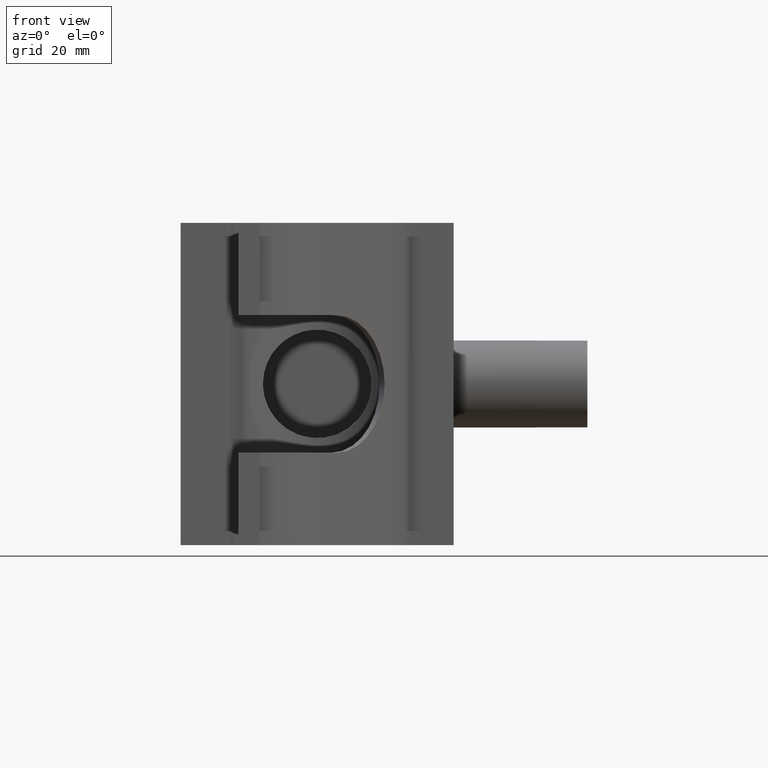
[diagram: clean part render]
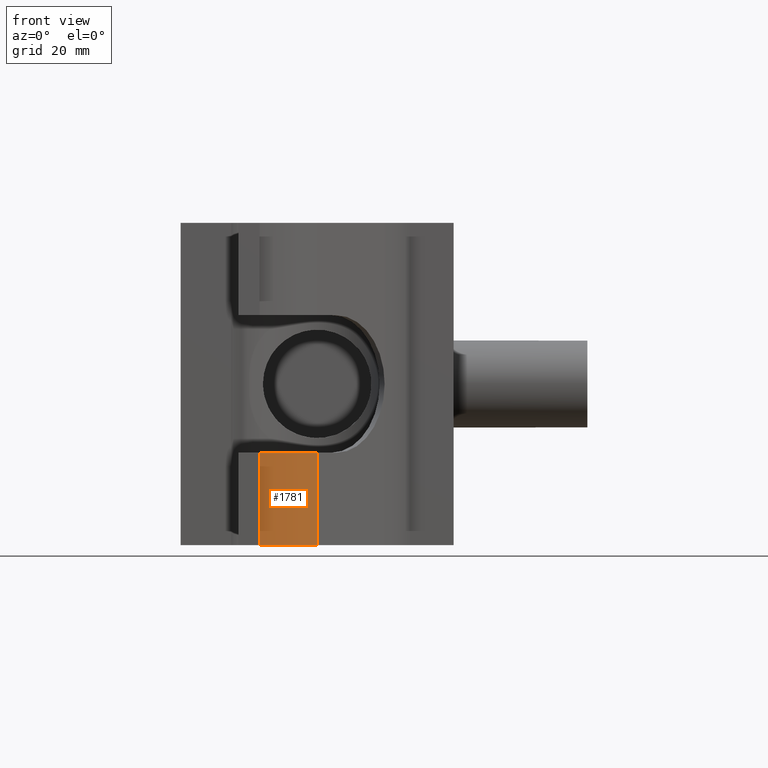
[diagram: same view with one face highlighted and labeled with its STEP entity id]
A machine part, front view. The second image highlights one B-rep face of the part: STEP entity #1781.
In plain terms, the highlighted cylindrical surface (partial cylindrical patch) has radius 34.9751 mm, axis along (0, 0, -1).
Its self-contained STEP definition (entity closure, byte-faithful):
#138=LINE('',#3574,#282);
#145=LINE('',#3587,#289);
#282=VECTOR('',#2422,33.8);
#289=VECTOR('',#2433,33.8);
#397=CYLINDRICAL_SURFACE('',#1960,34.9751164565775);
#498=FACE_OUTER_BOUND('',#631,.T.);
#631=EDGE_LOOP('',(#1555,#1556,#1557,#1558));
#704=CIRCLE('',#1941,34.9751164565775);
#711=CIRCLE('',#1961,34.9751164565775);
#851=VERTEX_POINT('',#3526);
#852=VERTEX_POINT('',#3528);
#865=VERTEX_POINT('',#3573);
#869=VERTEX_POINT('',#3585);
#1074=EDGE_CURVE('',#852,#851,#704,.T.);
#1097=EDGE_CURVE('',#852,#865,#138,.T.);
#1104=EDGE_CURVE('',#851,#869,#145,.T.);
#1107=EDGE_CURVE('',#865,#869,#711,.T.);
#1555=ORIENTED_EDGE('',*,*,#1074,.T.);
#1556=ORIENTED_EDGE('',*,*,#1104,.T.);
#1557=ORIENTED_EDGE('',*,*,#1107,.F.);
#1558=ORIENTED_EDGE('',*,*,#1097,.F.);
#1781=ADVANCED_FACE('',(#498),#397,.T.);
#1941=AXIS2_PLACEMENT_3D('',#3529,#2374,#2375);
#1960=AXIS2_PLACEMENT_3D('',#3592,#2438,#2439);
#1961=AXIS2_PLACEMENT_3D('',#3593,#2440,#2441);
#2374=DIRECTION('center_axis',(-7.47663076451472E-16,-7.47663074675932E-16,
-1.));
#2375=DIRECTION('ref_axis',(-0.119193476174969,-0.992871046630592,0.));
#2422=DIRECTION('',(0.,0.,-1.));
#2433=DIRECTION('',(0.,0.,-1.));
#2438=DIRECTION('center_axis',(0.,0.,-1.));
#2439=DIRECTION('ref_axis',(-0.119193476174969,-0.992871046630592,0.));
#2440=DIRECTION('center_axis',(0.,0.,-1.));
#2441=DIRECTION('ref_axis',(-0.119193476174969,-0.992871046630592,0.));
#3526=CARTESIAN_POINT('',(-21.0749478174158,-59.514629718263,-25.2));
#3528=CARTESIAN_POINT('',(-1.1746235539789E-7,-49.4622840972015,-25.2));
#3529=CARTESIAN_POINT('Origin',(-24.731142107332,-24.7311420486008,-25.2));
#3573=CARTESIAN_POINT('',(-1.1746235539789E-7,-49.4622840972015,-59.));
#3574=CARTESIAN_POINT('',(-1.1746235539789E-7,-49.4622840972015,59.));
#3585=CARTESIAN_POINT('',(-21.0749478174158,-59.514629718263,-59.));
#3587=CARTESIAN_POINT('',(-21.0749478174158,-59.514629718263,59.));
#3592=CARTESIAN_POINT('Origin',(-24.731142107332,-24.7311420486008,59.));
#3593=CARTESIAN_POINT('Origin',(-24.731142107332,-24.7311420486008,-59.));